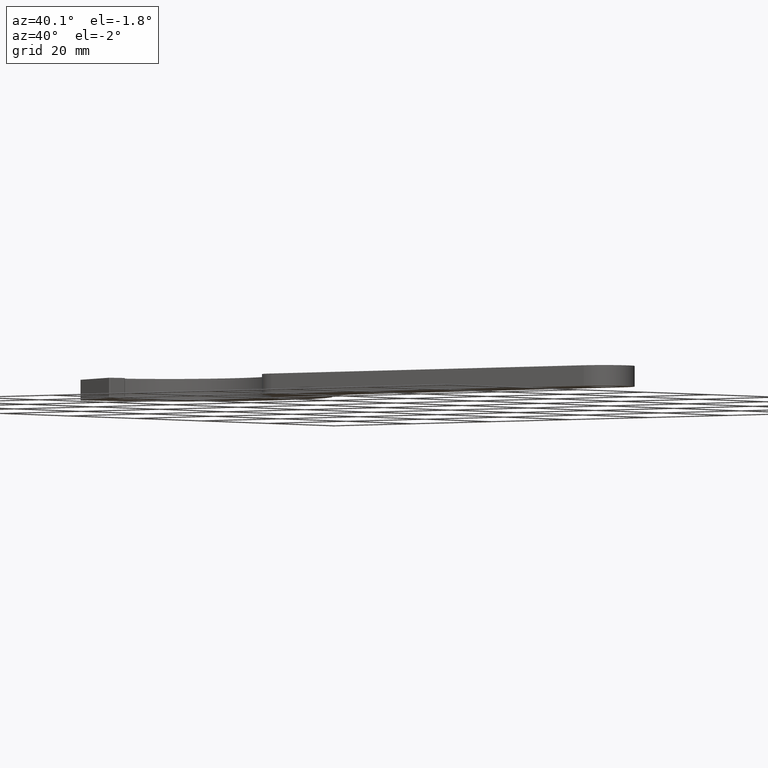
[diagram: clean part render]
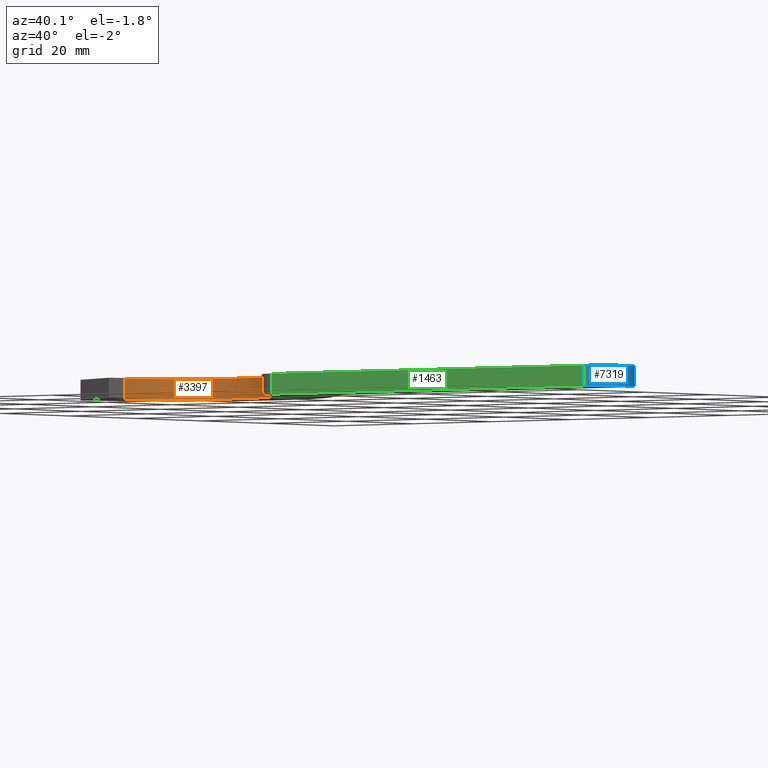
[diagram: same view with three faces highlighted in distinct colors, each labeled with its STEP entity id]
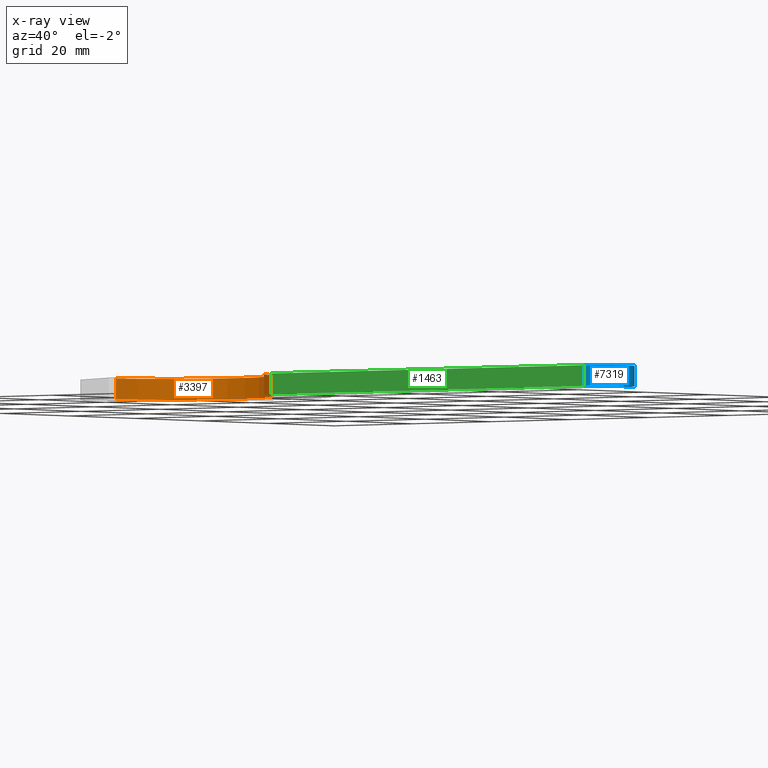
[diagram: x-ray of the same camera — body ghosted, the three highlighted faces saturated]
A machine part, auxiliary view with three faces highlighted in distinct colors.
The next image is the same camera in x-ray (body ghosted, the three faces saturated) — at least one of them is partly hidden behind the body in this view.
Their STEP definitions:

[orange] entity #3397 — the highlighted cylindrical surface (partial cylindrical patch) has radius 20.2 mm, axis along (-0, -0, -1).
#224 = DIRECTION ( 'NONE',  ( -0.0000000000000000000, -0.0000000000000000000, -1.000000000000000000 ) ) ;
#286 = DIRECTION ( 'NONE',  ( -1.000000000000000000, 0.0000000000000000000, 0.0000000000000000000 ) ) ;
#790 = CARTESIAN_POINT ( 'NONE',  ( 48.36695635319991000, -2.214945994889025500, 4.000000000000000000 ) ) ;
#795 = LINE ( 'NONE', #7492, #6355 ) ;
#1277 = EDGE_CURVE ( 'NONE', #3948, #5633, #795, .T. ) ;
#1793 = AXIS2_PLACEMENT_3D ( 'NONE', #2174, #224, #286 ) ;
#1796 = CARTESIAN_POINT ( 'NONE',  ( 48.36695635319991000, -2.214945994889025500, 0.0000000000000000000 ) ) ;
#2106 = DIRECTION ( 'NONE',  ( -1.000000000000000000, 0.0000000000000000000, 0.0000000000000000000 ) ) ;
#2174 = CARTESIAN_POINT ( 'NONE',  ( 29.08386002012753800, -8.231772052658277200, 0.0000000000000000000 ) ) ;
#2493 = DIRECTION ( 'NONE',  ( -0.0000000000000000000, -0.0000000000000000000, -1.000000000000000000 ) ) ;
#2701 = DIRECTION ( 'NONE',  ( -0.0000000000000000000, -0.0000000000000000000, -1.000000000000000000 ) ) ;
#2905 = CARTESIAN_POINT ( 'NONE',  ( 10.09685386963701400, -1.337310692897451600, 4.000000000000000000 ) ) ;
#2927 = ORIENTED_EDGE ( 'NONE', *, *, #3140, .T. ) ;
#3078 = DIRECTION ( 'NONE',  ( -1.000000000000000000, 0.0000000000000000000, 0.0000000000000000000 ) ) ;
#3140 = EDGE_CURVE ( 'NONE', #5633, #8497, #3768, .T. ) ;
#3397 = ADVANCED_FACE ( 'NONE', ( #5291 ), #6834, .F. ) ;
#3578 = ORIENTED_EDGE ( 'NONE', *, *, #1277, .T. ) ;
#3768 = CIRCLE ( 'NONE', #1793, 20.20000000000000300 ) ;
#3948 = VERTEX_POINT ( 'NONE', #2905 ) ;
#4027 = EDGE_CURVE ( 'NONE', #3948, #7455, #6015, .T. ) ;
#4230 = DIRECTION ( 'NONE',  ( -0.0000000000000000000, -0.0000000000000000000, -1.000000000000000000 ) ) ;
#4639 = CARTESIAN_POINT ( 'NONE',  ( 29.08386002012753800, -8.231772052658277200, 4.000000000000000000 ) ) ;
#4649 = CARTESIAN_POINT ( 'NONE',  ( 10.09685386963701400, -1.337310692897451600, 0.0000000000000000000 ) ) ;
#5014 = CARTESIAN_POINT ( 'NONE',  ( 29.08386002012753800, -8.231772052658277200, 4.000000000000000000 ) ) ;
#5173 = LINE ( 'NONE', #6488, #5892 ) ;
#5291 = FACE_OUTER_BOUND ( 'NONE', #5990, .T. ) ;
#5522 = EDGE_CURVE ( 'NONE', #7455, #8497, #5173, .T. ) ;
#5633 = VERTEX_POINT ( 'NONE', #4649 ) ;
#5788 = ORIENTED_EDGE ( 'NONE', *, *, #5522, .F. ) ;
#5892 = VECTOR ( 'NONE', #2493, 1000.000000000000000 ) ;
#5990 = EDGE_LOOP ( 'NONE', ( #2927, #5788, #6648, #3578 ) ) ;
#6015 = CIRCLE ( 'NONE', #6365, 20.20000000000000300 ) ;
#6355 = VECTOR ( 'NONE', #4230, 1000.000000000000000 ) ;
#6365 = AXIS2_PLACEMENT_3D ( 'NONE', #5014, #6988, #3078 ) ;
#6488 = CARTESIAN_POINT ( 'NONE',  ( 48.36695635319991000, -2.214945994889025500, 4.000000000000000000 ) ) ;
#6648 = ORIENTED_EDGE ( 'NONE', *, *, #4027, .F. ) ;
#6834 = CYLINDRICAL_SURFACE ( 'NONE', #8166, 20.20000000000000300 ) ;
#6988 = DIRECTION ( 'NONE',  ( -0.0000000000000000000, -0.0000000000000000000, -1.000000000000000000 ) ) ;
#7455 = VERTEX_POINT ( 'NONE', #790 ) ;
#7492 = CARTESIAN_POINT ( 'NONE',  ( 10.09685386963701400, -1.337310692897451600, 4.000000000000000000 ) ) ;
#8166 = AXIS2_PLACEMENT_3D ( 'NONE', #4639, #2701, #2106 ) ;
#8497 = VERTEX_POINT ( 'NONE', #1796 ) ;

[blue] entity #7319 — the highlighted cylindrical surface (edge-blend (fillet) strip) has radius 6 mm, axis along (-0, -0, -1).
#141 = CARTESIAN_POINT ( 'NONE',  ( 132.4844145945849900, 6.274367385746950600, 0.0000000000000000000 ) ) ;
#289 = EDGE_CURVE ( 'NONE', #1151, #7597, #600, .T. ) ;
#496 = VECTOR ( 'NONE', #4576, 1000.000000000000000 ) ;
#600 = CIRCLE ( 'NONE', #3815, 6.000000000000005300 ) ;
#1151 = VERTEX_POINT ( 'NONE', #6653 ) ;
#1423 = CARTESIAN_POINT ( 'NONE',  ( 132.4844145945849900, -5.725632614253062700, 0.0000000000000000000 ) ) ;
#1450 = ORIENTED_EDGE ( 'NONE', *, *, #3199, .F. ) ;
#1862 = EDGE_CURVE ( 'NONE', #7983, #5943, #6240, .T. ) ;
#2393 = CARTESIAN_POINT ( 'NONE',  ( 132.4844145945849900, 0.2743673857469433000, 4.000000000000000000 ) ) ;
#2646 = DIRECTION ( 'NONE',  ( 0.0000000000000000000, 0.0000000000000000000, 1.000000000000000000 ) ) ;
#2830 = EDGE_LOOP ( 'NONE', ( #6539, #1450, #8443, #8089 ) ) ;
#3015 = CYLINDRICAL_SURFACE ( 'NONE', #4619, 6.000000000000005300 ) ;
#3081 = DIRECTION ( 'NONE',  ( 0.0000000000000000000, 0.0000000000000000000, 1.000000000000000000 ) ) ;
#3137 = DIRECTION ( 'NONE',  ( -1.000000000000000000, 0.0000000000000000000, 0.0000000000000000000 ) ) ;
#3199 = EDGE_CURVE ( 'NONE', #7597, #5943, #4978, .T. ) ;
#3288 = CARTESIAN_POINT ( 'NONE',  ( 132.4844145945849900, -5.725632614253062700, 4.000000000000000000 ) ) ;
#3723 = DIRECTION ( 'NONE',  ( -0.0000000000000000000, -0.0000000000000000000, -1.000000000000000000 ) ) ;
#3815 = AXIS2_PLACEMENT_3D ( 'NONE', #5652, #3081, #6284 ) ;
#3949 = CARTESIAN_POINT ( 'NONE',  ( 132.4844145945849900, 0.2743673857469433000, 0.0000000000000000000 ) ) ;
#4121 = DIRECTION ( 'NONE',  ( -0.0000000000000000000, -0.0000000000000000000, -1.000000000000000000 ) ) ;
#4576 = DIRECTION ( 'NONE',  ( -0.0000000000000000000, -0.0000000000000000000, -1.000000000000000000 ) ) ;
#4619 = AXIS2_PLACEMENT_3D ( 'NONE', #2393, #3723, #3137 ) ;
#4978 = LINE ( 'NONE', #6830, #7554 ) ;
#5069 = AXIS2_PLACEMENT_3D ( 'NONE', #3949, #2646, #5285 ) ;
#5285 = DIRECTION ( 'NONE',  ( 1.000000000000000000, 0.0000000000000000000, 0.0000000000000000000 ) ) ;
#5605 = CARTESIAN_POINT ( 'NONE',  ( 132.4844145945849900, 6.274367385746950600, 4.000000000000000000 ) ) ;
#5652 = CARTESIAN_POINT ( 'NONE',  ( 132.4844145945849900, 0.2743673857469433000, 4.000000000000000000 ) ) ;
#5943 = VERTEX_POINT ( 'NONE', #141 ) ;
#6240 = CIRCLE ( 'NONE', #5069, 6.000000000000005300 ) ;
#6241 = LINE ( 'NONE', #3288, #496 ) ;
#6284 = DIRECTION ( 'NONE',  ( 1.000000000000000000, 0.0000000000000000000, 0.0000000000000000000 ) ) ;
#6539 = ORIENTED_EDGE ( 'NONE', *, *, #1862, .T. ) ;
#6653 = CARTESIAN_POINT ( 'NONE',  ( 132.4844145945849900, -5.725632614253062700, 4.000000000000000000 ) ) ;
#6830 = CARTESIAN_POINT ( 'NONE',  ( 132.4844145945849900, 6.274367385746950600, 4.000000000000000000 ) ) ;
#7319 = ADVANCED_FACE ( 'NONE', ( #7529 ), #3015, .T. ) ;
#7529 = FACE_OUTER_BOUND ( 'NONE', #2830, .T. ) ;
#7554 = VECTOR ( 'NONE', #4121, 1000.000000000000000 ) ;
#7597 = VERTEX_POINT ( 'NONE', #5605 ) ;
#7807 = EDGE_CURVE ( 'NONE', #1151, #7983, #6241, .T. ) ;
#7983 = VERTEX_POINT ( 'NONE', #1423 ) ;
#8089 = ORIENTED_EDGE ( 'NONE', *, *, #7807, .T. ) ;
#8443 = ORIENTED_EDGE ( 'NONE', *, *, #289, .F. ) ;

[green] entity #1463 — the highlighted planar face has unit normal (-0, 1, 0).
#32 = EDGE_CURVE ( 'NONE', #4724, #1738, #7072, .T. ) ;
#496 = VECTOR ( 'NONE', #4576, 1000.000000000000000 ) ;
#532 = ORIENTED_EDGE ( 'NONE', *, *, #1888, .T. ) ;
#1151 = VERTEX_POINT ( 'NONE', #6653 ) ;
#1311 = CARTESIAN_POINT ( 'NONE',  ( 132.4844145945849900, -5.725632614253061800, 0.0000000000000000000 ) ) ;
#1423 = CARTESIAN_POINT ( 'NONE',  ( 132.4844145945849900, -5.725632614253062700, 0.0000000000000000000 ) ) ;
#1463 = ADVANCED_FACE ( 'NONE', ( #3369 ), #6765, .F. ) ;
#1525 = LINE ( 'NONE', #5765, #7984 ) ;
#1682 = EDGE_CURVE ( 'NONE', #4724, #1151, #1525, .T. ) ;
#1738 = VERTEX_POINT ( 'NONE', #2509 ) ;
#1888 = EDGE_CURVE ( 'NONE', #1738, #7983, #2640, .T. ) ;
#2040 = CARTESIAN_POINT ( 'NONE',  ( 53.14000000000000100, -5.725632614253071600, 4.000000000000000000 ) ) ;
#2220 = CARTESIAN_POINT ( 'NONE',  ( 132.4844145945849900, -5.725632614253061800, 4.000000000000000000 ) ) ;
#2241 = DIRECTION ( 'NONE',  ( -0.0000000000000000000, -0.0000000000000000000, -1.000000000000000000 ) ) ;
#2509 = CARTESIAN_POINT ( 'NONE',  ( 53.14000000000000100, -5.725632614253071600, 0.0000000000000000000 ) ) ;
#2640 = LINE ( 'NONE', #1311, #6643 ) ;
#2713 = EDGE_LOOP ( 'NONE', ( #532, #8158, #6977, #6682 ) ) ;
#2861 = DIRECTION ( 'NONE',  ( -1.000000000000000000, -1.202476464994119400E-016, 0.0000000000000000000 ) ) ;
#3288 = CARTESIAN_POINT ( 'NONE',  ( 132.4844145945849900, -5.725632614253062700, 4.000000000000000000 ) ) ;
#3369 = FACE_OUTER_BOUND ( 'NONE', #2713, .T. ) ;
#3590 = CARTESIAN_POINT ( 'NONE',  ( 53.14000000000000100, -5.725632614253071600, 4.000000000000000000 ) ) ;
#3752 = DIRECTION ( 'NONE',  ( 1.000000000000000000, 1.202476464994119400E-016, -0.0000000000000000000 ) ) ;
#4041 = AXIS2_PLACEMENT_3D ( 'NONE', #2220, #5407, #2861 ) ;
#4576 = DIRECTION ( 'NONE',  ( -0.0000000000000000000, -0.0000000000000000000, -1.000000000000000000 ) ) ;
#4724 = VERTEX_POINT ( 'NONE', #2040 ) ;
#5407 = DIRECTION ( 'NONE',  ( -1.202476464994119400E-016, 1.000000000000000000, 0.0000000000000000000 ) ) ;
#5765 = CARTESIAN_POINT ( 'NONE',  ( 132.4844145945849900, -5.725632614253061800, 4.000000000000000000 ) ) ;
#6241 = LINE ( 'NONE', #3288, #496 ) ;
#6579 = DIRECTION ( 'NONE',  ( 1.000000000000000000, 1.202476464994119400E-016, -0.0000000000000000000 ) ) ;
#6643 = VECTOR ( 'NONE', #6579, 1000.000000000000000 ) ;
#6653 = CARTESIAN_POINT ( 'NONE',  ( 132.4844145945849900, -5.725632614253062700, 4.000000000000000000 ) ) ;
#6682 = ORIENTED_EDGE ( 'NONE', *, *, #32, .T. ) ;
#6765 = PLANE ( 'NONE',  #4041 ) ;
#6977 = ORIENTED_EDGE ( 'NONE', *, *, #1682, .F. ) ;
#7072 = LINE ( 'NONE', #3590, #7480 ) ;
#7480 = VECTOR ( 'NONE', #2241, 1000.000000000000000 ) ;
#7807 = EDGE_CURVE ( 'NONE', #1151, #7983, #6241, .T. ) ;
#7983 = VERTEX_POINT ( 'NONE', #1423 ) ;
#7984 = VECTOR ( 'NONE', #3752, 1000.000000000000000 ) ;
#8158 = ORIENTED_EDGE ( 'NONE', *, *, #7807, .F. ) ;